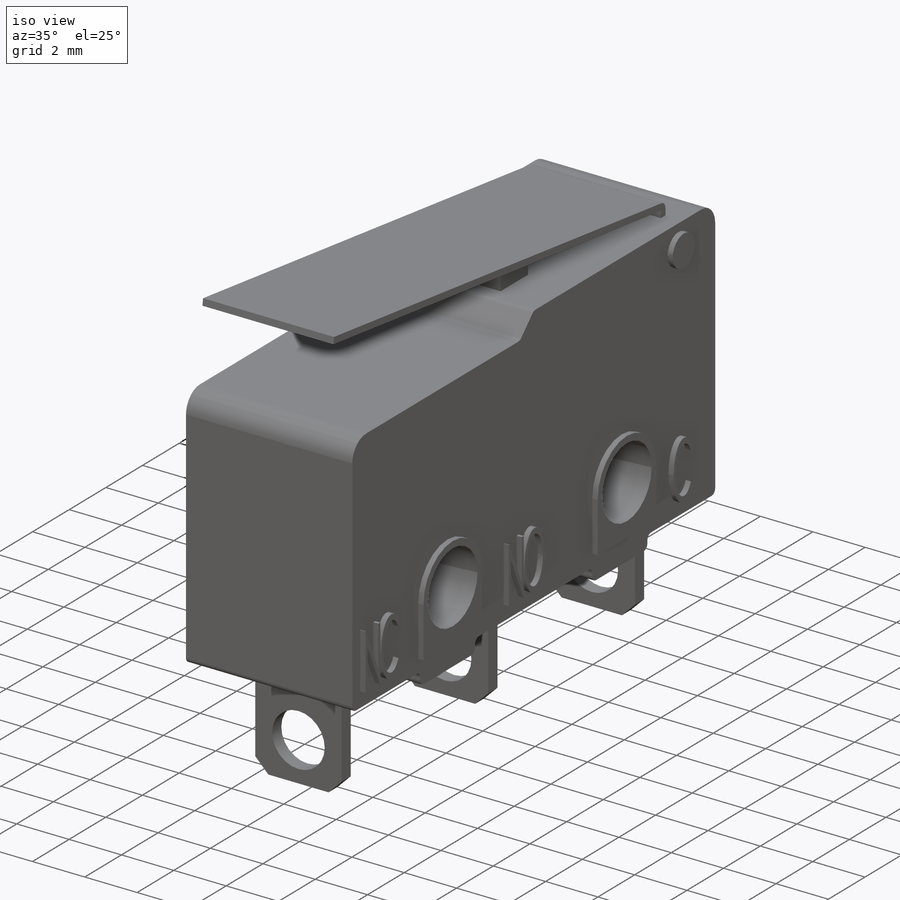
[diagram: iso view]
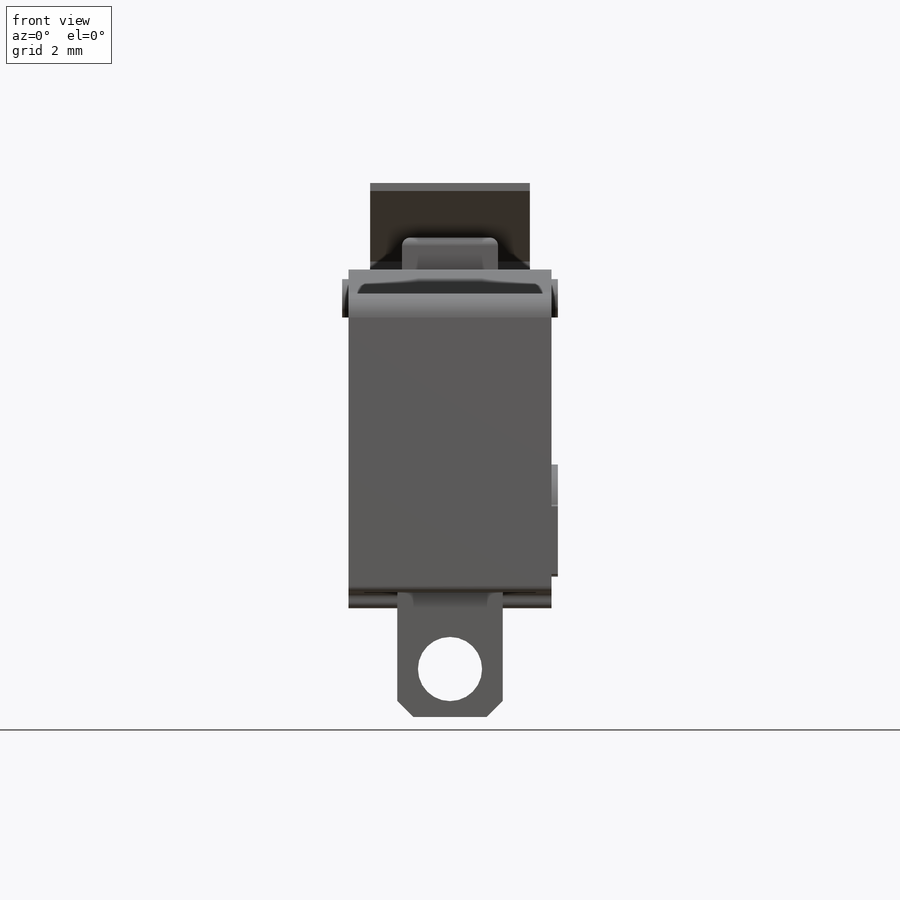
[diagram: front view]
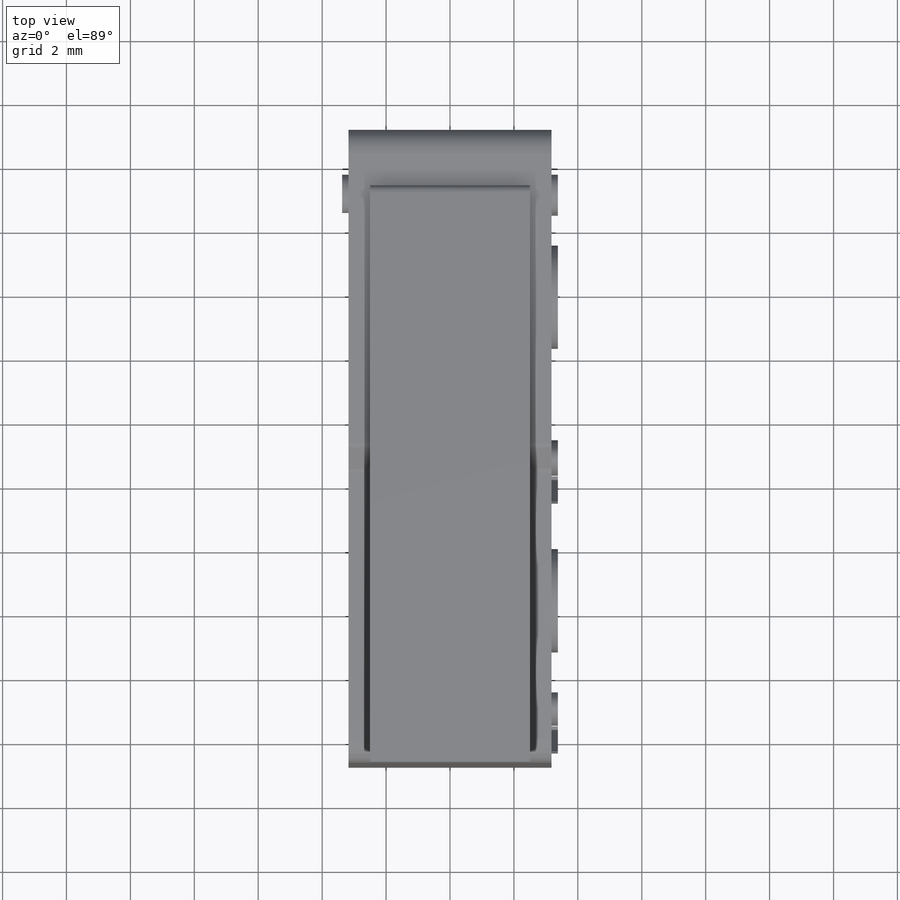
[diagram: top view]
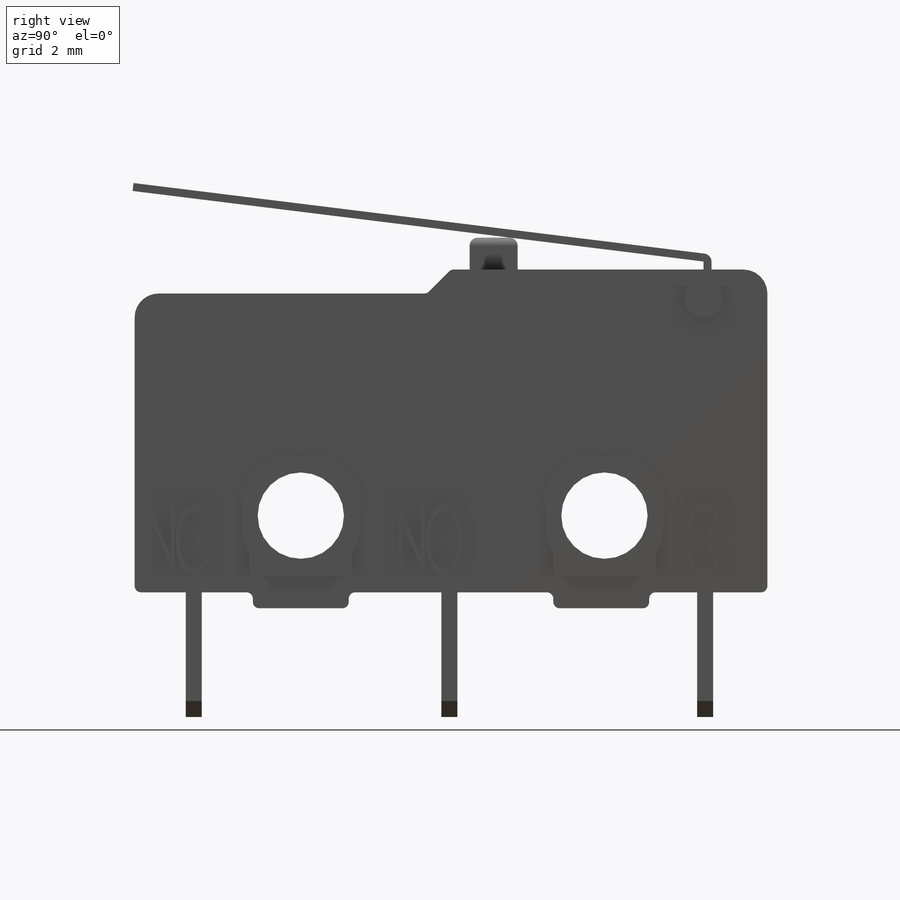
[diagram: right view]
SOLIDWORKS PART (.sldprt)
format: sldprt  version: not decoded by parser v0  size: 534,016 bytes
history: native  units: mm
features: sketch x13, extrude x6, cut_extrude x2, sheet_metal_op x2, material x1, fillet x1, mirror x1, plane x1, chamfer x1, pattern_linear x1 + 1 further entry (+13 scaffold rows collapsed; 1 parser-record rows omitted)
feature tree (44):
  scaffold x13  (default folders/planes/origin — collapsed)
  material  "Material <not specified>"
  sketch  "Sketch1"  dims[c1.D1=0.75mm c1.D5=0.2mm c1.D8=0.75mm c1.D9=0.2mm c2.D1=10.6mm c2.D2=19.8mm c3.D2=0.5mm c3.D3=3.95mm c3.D4=3.0mm c3.D6=10.6mm c3.D7=19.8mm c3.D8=0.75mm c3.D9=9.15mm c4.D9=45.0deg c5.D9=9.15mm c5.D10=5.5mm c5.D3=6.0mm]
  extrude  "Boss-Extrude1"  Depth=6.35mm
  sketch  "Sketch2"  dims[c1.D1=1.35mm c1.D2=2.7mm c2.D1=2.9mm c2.D2=4.75mm c2.D3=9.5mm c2.D4=2.0]
  cut_extrude  "Cut-Extrude1"  [1 undecoded]
  sketch  "Sketch3"  dims[D1=0.9mm D2=2.0mm]
  sketch  "Sketch4"  dims[c1.D1=2.0mm c1.D2=2.0mm c2.D1=2.0mm c2.D2=2.0mm c3.D1=2.0mm c3.D2=3.0mm c4.D1=1.5mm c4.D2=3.0mm c4.D3=0.5mm]
  extrude  "Boss-Extrude2"  Depth=1mm
  fillet  "Fillet1"  Radius=0.25mm
  extrude  "Boss-Extrude3"  Depth=0.2mm
  mirror  "Mirror2"
  sketch  "Sketch7"  dims[c1.D1=~1.914486mm c2.D1=0.0deg c2.D2=0.0deg]
  extrude  "Boss-Extrude4"  Depth=0.2mm
  plane  "Plane1"  Offset=0.675mm
  sketch  "Sketch8"  dims[c1.D3=0.25mm c1.D1=0.25mm c1.D2=18.0mm c2.D1=0.001mm c2.D2=0.5]
  sheet_metal_op  "Base-Flange1"
  sketch  "Sketch13"  dims[D1=0.5mm D2=3.3mm]
  extrude  "Boss-Extrude5"  Depth=3.9mm
  chamfer  "Chamfer1"  Distance=0.5mm
  sketch  "Sketch14"  dims[D1=1.5mm]
  cut_extrude  "Cut-Extrude3"  Depth=1mm
  pattern_linear  "LPattern1"  Spacing1=8mm Spacing2=10mm  [1 undecoded]
  sketch  "Sketch15"
  extrude  "Boss-Extrude6"  Depth=0.2mm
  sketch  "Bend-Lines1"
  sketch  "Bounding-Box1"
  sheet_metal_op  "Sheet-Metal(9)"
  "Flat-Pattern(9)"
  sketch  "Bend-Lines2"
  sketch  "Bounding-Box2"
  parser-record x1  (decoder bookkeeping rows leaked as tree rows — omitted from the tree; the rows remain in map.json)
decode coverage: 18 of 27 modeling features carry decoded parameters; 1 rows unclassified (native names shown)
note: ~ marks probable driven/reference dimensions
note: 2 parameter values undecoded
note: suppression state not decoded; provenance and decode notes live in map.json
